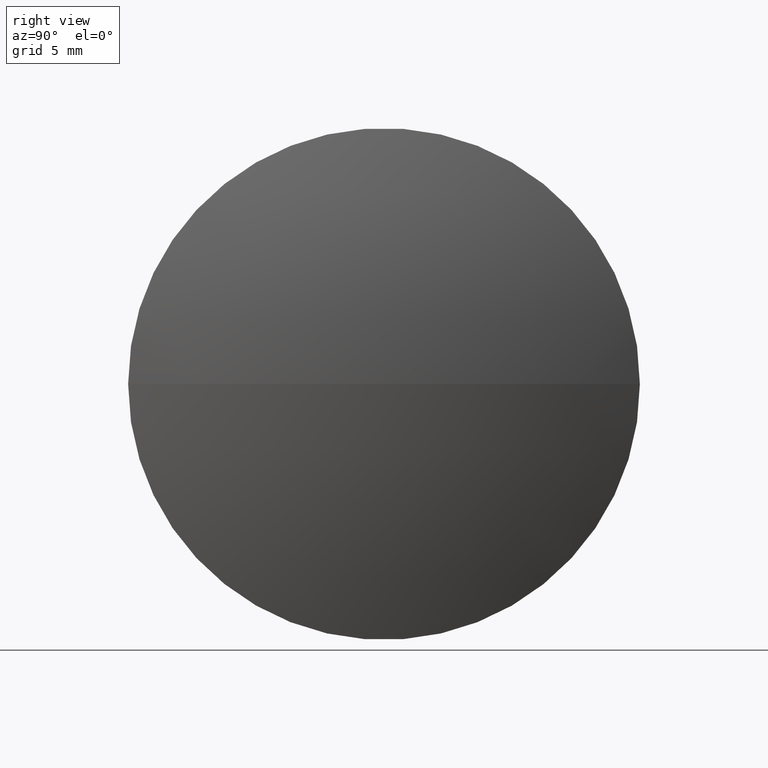
[diagram: clean part render]
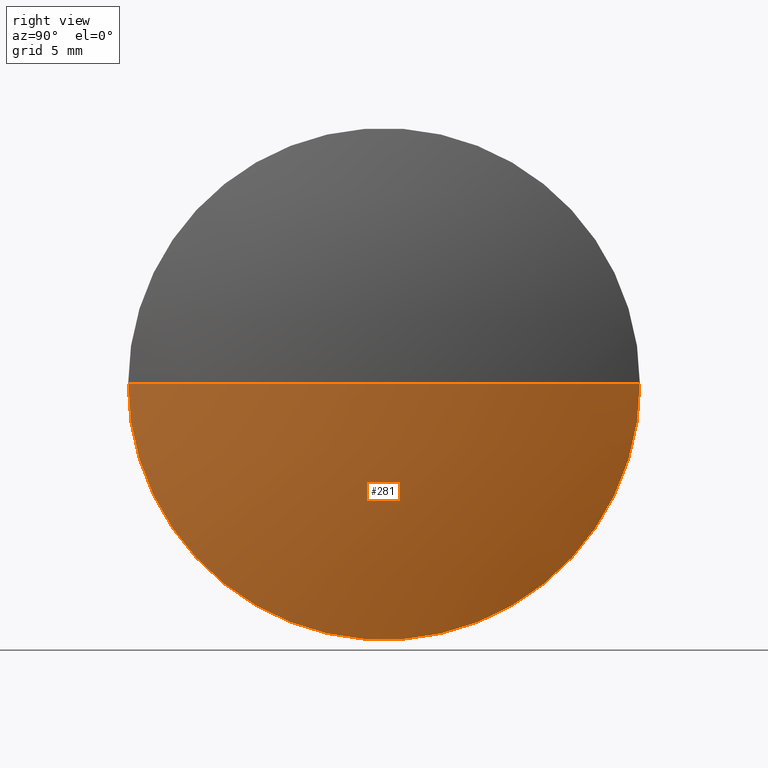
[diagram: same view with one face highlighted and labeled with its STEP entity id]
A machine part, right view. The second image highlights one B-rep face of the part: STEP entity #281.
In plain terms, the highlighted spherical surface has radius 40.9391 mm.
Its self-contained STEP definition (entity closure, byte-faithful):
#7 = AXIS2_PLACEMENT_3D ( 'NONE', #194, #216, #76 ) ;
#9 = FACE_OUTER_BOUND ( 'NONE', #116, .T. ) ;
#25 = VERTEX_POINT ( 'NONE', #233 ) ;
#28 = EDGE_CURVE ( 'NONE', #232, #172, #164, .T. ) ;
#45 = AXIS2_PLACEMENT_3D ( 'NONE', #260, #289, #271 ) ;
#50 = ORIENTED_EDGE ( 'NONE', *, *, #283, .F. ) ;
#54 = ORIENTED_EDGE ( 'NONE', *, *, #264, .T. ) ;
#74 = DIRECTION ( 'NONE',  ( 0.0000000000000000000, 0.0000000000000000000, -1.000000000000000000 ) ) ;
#76 = DIRECTION ( 'NONE',  ( 0.0000000000000000000, 1.000000000000000000, 1.224646799147353200E-016 ) ) ;
#105 = CARTESIAN_POINT ( 'NONE',  ( 85.89164741600619400, 60.35050494407934000, 0.0000000000000000000 ) ) ;
#116 = EDGE_LOOP ( 'NONE', ( #240, #54, #50 ) ) ;
#149 = CIRCLE ( 'NONE', #45, 12.49999999999998400 ) ;
#164 = CIRCLE ( 'NONE', #236, 40.93913682864445700 ) ;
#172 = VERTEX_POINT ( 'NONE', #105 ) ;
#187 = DIRECTION ( 'NONE',  ( 0.0000000000000000000, 0.0000000000000000000, 1.000000000000000000 ) ) ;
#191 = DIRECTION ( 'NONE',  ( 1.000000000000000000, 0.0000000000000000000, 0.0000000000000000000 ) ) ;
#194 = CARTESIAN_POINT ( 'NONE',  ( 46.90751058736174200, 47.85050494407934700, 0.0000000000000000000 ) ) ;
#207 = CARTESIAN_POINT ( 'NONE',  ( 46.90751058736174200, 47.85050494407934700, 0.0000000000000000000 ) ) ;
#216 = DIRECTION ( 'NONE',  ( 5.222514560656729000E-031, 1.224646799147353200E-016, -1.000000000000000000 ) ) ;
#232 = VERTEX_POINT ( 'NONE', #241 ) ;
#233 = CARTESIAN_POINT ( 'NONE',  ( 85.89164741600608000, 35.35050494407919800, -1.530808498934189700E-015 ) ) ;
#236 = AXIS2_PLACEMENT_3D ( 'NONE', #207, #187, #191 ) ;
#240 = ORIENTED_EDGE ( 'NONE', *, *, #28, .F. ) ;
#241 = CARTESIAN_POINT ( 'NONE',  ( 87.84664741600620600, 47.85050494407916900, 0.0000000000000000000 ) ) ;
#242 = AXIS2_PLACEMENT_3D ( 'NONE', #266, #74, #263 ) ;
#260 = CARTESIAN_POINT ( 'NONE',  ( 85.89164741600615100, 47.85050494407936100, 0.0000000000000000000 ) ) ;
#263 = DIRECTION ( 'NONE',  ( 4.237323036969965800E-015, 1.000000000000000000, 0.0000000000000000000 ) ) ;
#264 = EDGE_CURVE ( 'NONE', #232, #25, #273, .T. ) ;
#266 = CARTESIAN_POINT ( 'NONE',  ( 46.90751058736174200, 47.85050494407934700, 0.0000000000000000000 ) ) ;
#271 = DIRECTION ( 'NONE',  ( -4.440892098500631700E-015, -1.000000000000000000, 0.0000000000000000000 ) ) ;
#273 = CIRCLE ( 'NONE', #7, 40.93913682864445700 ) ;
#281 = ADVANCED_FACE ( 'NONE', ( #9 ), #299, .T. ) ;
#283 = EDGE_CURVE ( 'NONE', #172, #25, #149, .T. ) ;
#289 = DIRECTION ( 'NONE',  ( -1.000000000000000000, 4.264506765781650100E-015, -0.0000000000000000000 ) ) ;
#299 = SPHERICAL_SURFACE ( 'NONE', #242, 40.93913682864445000 ) ;